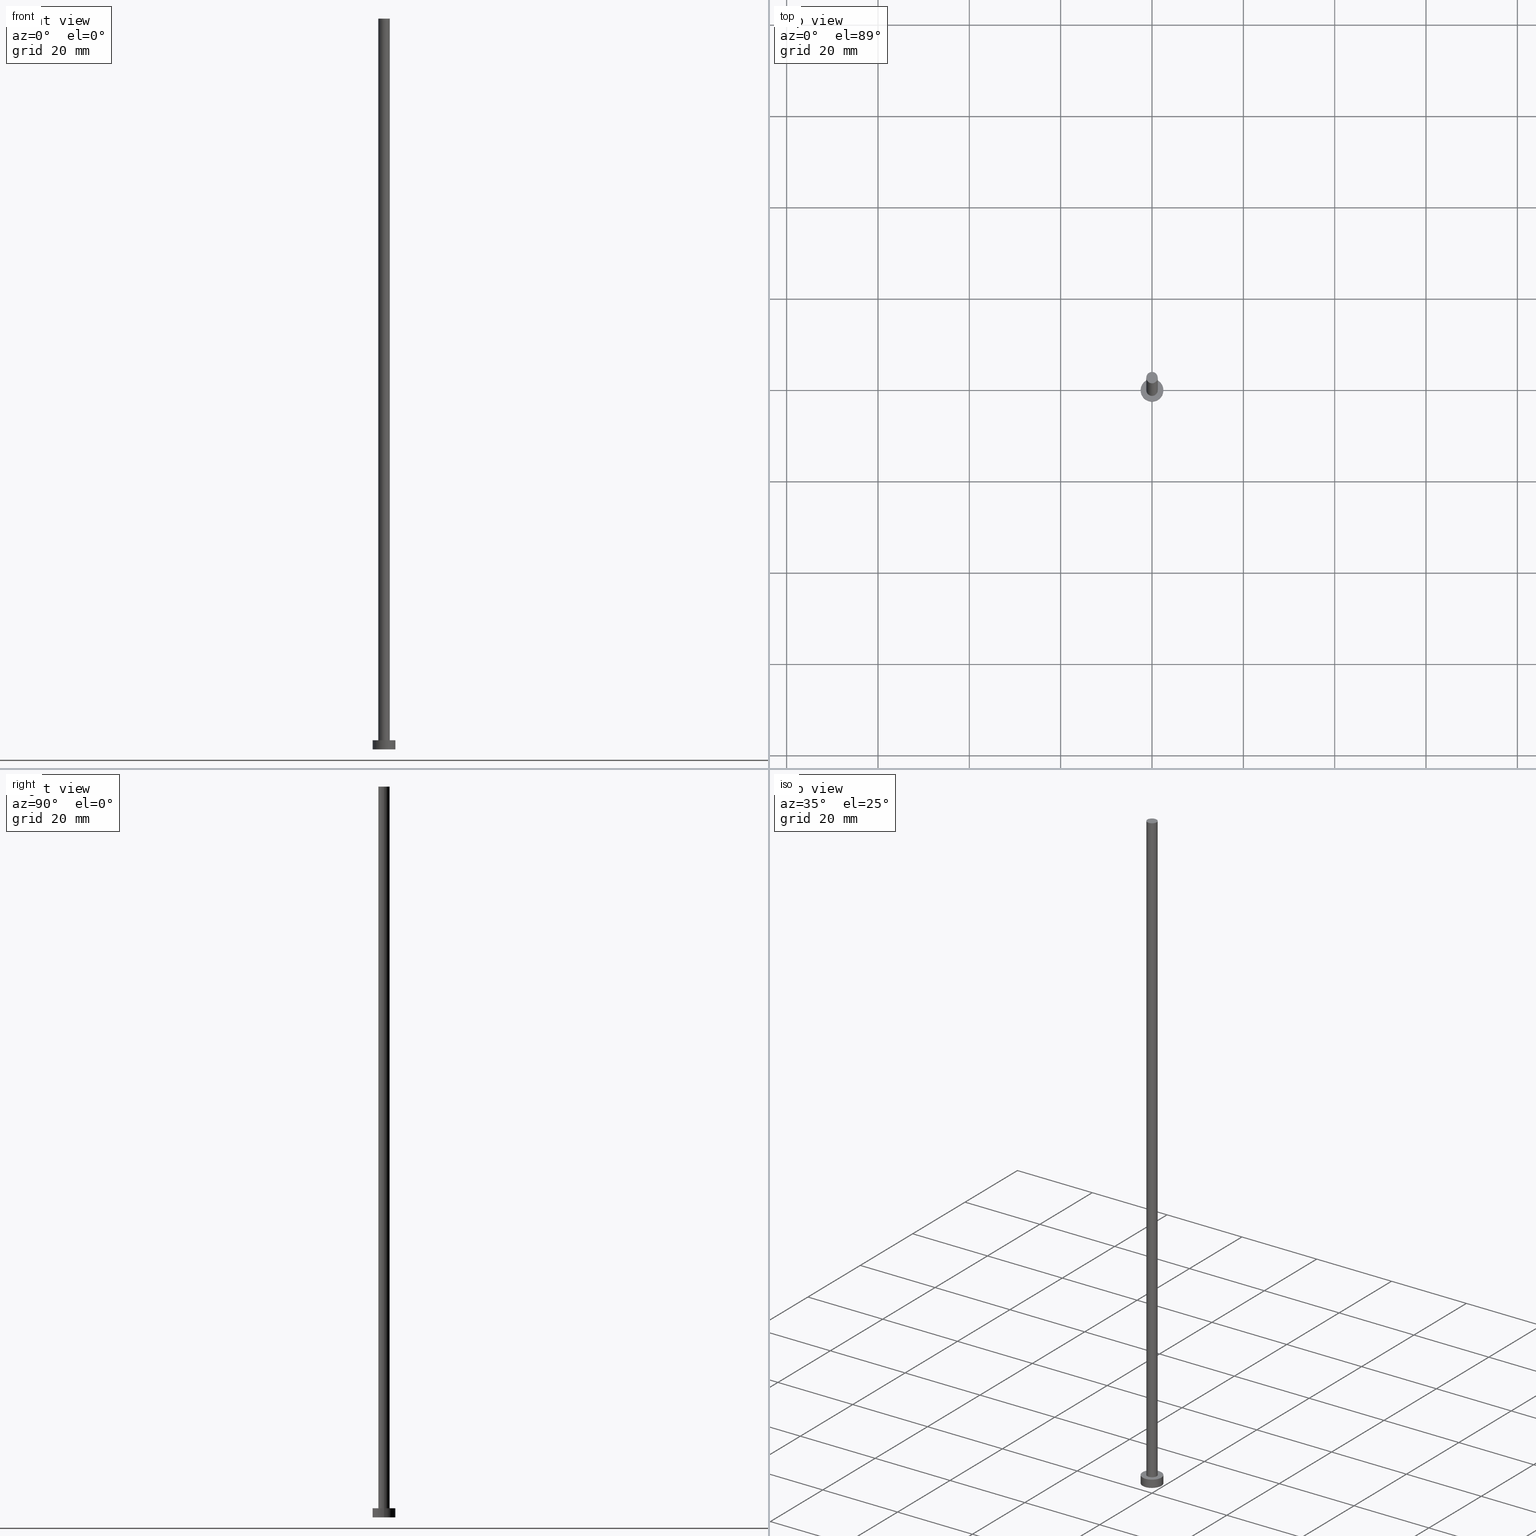
[diagram: canonical four-view strip — front | top / right | iso, engineering-drawing reading convention]
A machine part, canonical four-view strip (front | top / right | iso — engineering-drawing reading convention). The complete STEP part file that produces these views, byte-faithful:
ISO-10303-21;
HEADER;
FILE_DESCRIPTION (( 'STEP AP203' ),
    '1' );
FILE_NAME ('59c2.STEP',
    '2023-02-13T17:04:40',
    ( '' ),
    ( '' ),
    'SwSTEP 2.0',
    'SolidWorks 2019',
    '' );
FILE_SCHEMA (( 'CONFIG_CONTROL_DESIGN' ));
ENDSEC;

DATA;
#1 = CARTESIAN_POINT ( 'NONE',  ( 0.000000000000000000, 0.000000000000000000, 160.0000000000000000 ) ) ;
#2 = APPROVAL ( #150, 'NEUR�EN�' ) ;
#3 = VERTEX_POINT ( 'NONE', #157 ) ;
#4 = PERSON_AND_ORGANIZATION_ROLE ( 'design_supplier' ) ;
#5 = ORIENTED_EDGE ( 'NONE', *, *, #137, .T. ) ;
#6 = UNCERTAINTY_MEASURE_WITH_UNIT (LENGTH_MEASURE( 1.000000000000000082E-05 ), #68, 'distance_accuracy_value', 'NONE');
#7 = COORDINATED_UNIVERSAL_TIME_OFFSET ( 1, 0, .AHEAD. ) ;
#8 = EDGE_CURVE ( 'NONE', #170, #176, #45, .T. ) ;
#9 = EDGE_LOOP ( 'NONE', ( #16, #96 ) ) ;
#10 = PERSON_AND_ORGANIZATION ( #159, #158 ) ;
#11 = PRODUCT_DEFINITION_SHAPE ( 'NONE', 'NONE',  #129 ) ;
#12 = CARTESIAN_POINT ( 'NONE',  ( 0.000000000000000000, 0.000000000000000000, 0.000000000000000000 ) ) ;
#13 = APPROVAL_DATE_TIME ( #40, #2 ) ;
#14 = APPROVAL_DATE_TIME ( #34, #106 ) ;
#15 = PERSON_AND_ORGANIZATION_ROLE ( 'design_owner' ) ;
#16 = ORIENTED_EDGE ( 'NONE', *, *, #8, .T. ) ;
#17 = CARTESIAN_POINT ( 'NONE',  ( -2.500000000000000000, 0.000000000000000000, 2.000000000000000000 ) ) ;
#18 = ORIENTED_EDGE ( 'NONE', *, *, #8, .F. ) ;
#19 = CARTESIAN_POINT ( 'NONE',  ( 2.500000000000000000, 3.061616997868383141E-16, 2.000000000000000000 ) ) ;
#20 = DATE_AND_TIME ( #193, #122 ) ;
#21 = ORIENTED_EDGE ( 'NONE', *, *, #94, .F. ) ;
#22 = CARTESIAN_POINT ( 'NONE',  ( 0.000000000000000000, 0.000000000000000000, 2.000000000000000000 ) ) ;
#23 = AXIS2_PLACEMENT_3D ( 'NONE', #234, #212, #52 ) ;
#24 = CIRCLE ( 'NONE', #239, 2.500000000000000000 ) ;
#25 = CC_DESIGN_APPROVAL ( #2, ( #116 ) ) ;
#26 = DIRECTION ( 'NONE',  ( -0.000000000000000000, -0.000000000000000000, -1.000000000000000000 ) ) ;
#27 = PRODUCT_RELATED_PRODUCT_CATEGORY ( 'detail', '', ( #104 ) ) ;
#28 = CLOSED_SHELL ( 'NONE', ( #48, #211, #115, #151, #163, #126, #114 ) ) ;
#29 = APPROVAL_PERSON_ORGANIZATION ( #180, #2, #71 ) ;
#30 = DIRECTION ( 'NONE',  ( -0.000000000000000000, -0.000000000000000000, -1.000000000000000000 ) ) ;
#31 = LINE ( 'NONE', #148, #213 ) ;
#32 = VECTOR ( 'NONE', #173, 1000.000000000000000 ) ;
#33 = EDGE_CURVE ( 'NONE', #3, #41, #120, .T. ) ;
#34 = DATE_AND_TIME ( #187, #98 ) ;
#35 = DIRECTION ( 'NONE',  ( -1.000000000000000000, 0.000000000000000000, 0.000000000000000000 ) ) ;
#36 = AXIS2_PLACEMENT_3D ( 'NONE', #109, #155, #221 ) ;
#37 = VECTOR ( 'NONE', #83, 1000.000000000000000 ) ;
#38 = EDGE_CURVE ( 'NONE', #41, #232, #195, .T. ) ;
#39 = EDGE_LOOP ( 'NONE', ( #21, #18, #250, #240 ) ) ;
#40 = DATE_AND_TIME ( #90, #147 ) ;
#41 = VERTEX_POINT ( 'NONE', #55 ) ;
#42 = DIRECTION ( 'NONE',  ( 1.000000000000000000, 0.000000000000000000, -0.000000000000000000 ) ) ;
#43 = CALENDAR_DATE ( 2023, 13, 2 ) ;
#44 = DIRECTION ( 'NONE',  ( 1.000000000000000000, 0.000000000000000000, 0.000000000000000000 ) ) ;
#45 = CIRCLE ( 'NONE', #36, 2.500000000000000000 ) ;
#46 = FACE_OUTER_BOUND ( 'NONE', #9, .T. ) ;
#47 = CIRCLE ( 'NONE', #188, 1.250000000000000000 ) ;
#48 = ADVANCED_FACE ( 'NONE', ( #254 ), #178, .T. ) ;
#49 = ORIENTED_EDGE ( 'NONE', *, *, #236, .F. ) ;
#50 = FACE_OUTER_BOUND ( 'NONE', #39, .T. ) ;
#51 = DIRECTION ( 'NONE',  ( 0.000000000000000000, 0.000000000000000000, 1.000000000000000000 ) ) ;
#52 = DIRECTION ( 'NONE',  ( -1.000000000000000000, 0.000000000000000000, 0.000000000000000000 ) ) ;
#53 = VECTOR ( 'NONE', #103, 1000.000000000000000 ) ;
#54 = EDGE_CURVE ( 'NONE', #204, #65, #108, .T. ) ;
#55 = CARTESIAN_POINT ( 'NONE',  ( 1.250000000000000000, 1.530808498934191571E-16, 2.000000000000000000 ) ) ;
#56 = DIRECTION ( 'NONE',  ( 0.000000000000000000, 0.000000000000000000, 1.000000000000000000 ) ) ;
#57 = CARTESIAN_POINT ( 'NONE',  ( 1.250000000000000000, 1.530808498934191571E-16, 160.0000000000000000 ) ) ;
#58 = PERSON_AND_ORGANIZATION ( #159, #158 ) ;
#59 = CARTESIAN_POINT ( 'NONE',  ( -1.250000000000000000, 0.000000000000000000, 160.0000000000000000 ) ) ;
#60 = DIRECTION ( 'NONE',  ( 0.000000000000000000, 0.000000000000000000, 1.000000000000000000 ) ) ;
#61 = APPROVAL_ROLE ( '' ) ;
#62 = PLANE ( 'NONE',  #110 ) ;
#63 = ORIENTED_EDGE ( 'NONE', *, *, #149, .F. ) ;
#64 = AXIS2_PLACEMENT_3D ( 'NONE', #140, #223, #42 ) ;
#65 = VERTEX_POINT ( 'NONE', #81 ) ;
#66 = FACE_BOUND ( 'NONE', #245, .T. ) ;
#67 = DIRECTION ( 'NONE',  ( 0.000000000000000000, 0.000000000000000000, 1.000000000000000000 ) ) ;
#68 =( LENGTH_UNIT ( ) NAMED_UNIT ( * ) SI_UNIT ( .MILLI., .METRE. ) );
#69 = EDGE_CURVE ( 'NONE', #176, #170, #138, .T. ) ;
#70 = CIRCLE ( 'NONE', #139, 1.250000000000000000 ) ;
#71 = APPROVAL_ROLE ( '' ) ;
#72 = CC_DESIGN_PERSON_AND_ORGANIZATION_ASSIGNMENT ( #58, #181, ( #129 ) ) ;
#73 = AXIS2_PLACEMENT_3D ( 'NONE', #1, #30, #92 ) ;
#74 = FACE_OUTER_BOUND ( 'NONE', #84, .T. ) ;
#75 = DESIGN_CONTEXT ( 'detailed design', #76, 'design' ) ;
#76 = APPLICATION_CONTEXT ( 'configuration controlled 3d designs of mechanical parts and assemblies' ) ;
#77 = CC_DESIGN_PERSON_AND_ORGANIZATION_ASSIGNMENT ( #189, #80, ( #216 ) ) ;
#78 = EDGE_LOOP ( 'NONE', ( #125, #231 ) ) ;
#79 = DIRECTION ( 'NONE',  ( 0.000000000000000000, 0.000000000000000000, 1.000000000000000000 ) ) ;
#80 = PERSON_AND_ORGANIZATION_ROLE ( 'classification_officer' ) ;
#81 = CARTESIAN_POINT ( 'NONE',  ( -2.500000000000000000, 0.000000000000000000, 0.000000000000000000 ) ) ;
#82 = CARTESIAN_POINT ( 'NONE',  ( 0.000000000000000000, 0.000000000000000000, 160.0000000000000000 ) ) ;
#83 = DIRECTION ( 'NONE',  ( -0.000000000000000000, -0.000000000000000000, -1.000000000000000000 ) ) ;
#84 = EDGE_LOOP ( 'NONE', ( #235, #175, #238, #5 ) ) ;
#85 = CARTESIAN_POINT ( 'NONE',  ( 0.000000000000000000, 0.000000000000000000, 2.000000000000000000 ) ) ;
#86 = AXIS2_PLACEMENT_3D ( 'NONE', #85, #196, #91 ) ;
#87 = CIRCLE ( 'NONE', #224, 1.250000000000000000 ) ;
#88 = EDGE_CURVE ( 'NONE', #167, #3, #47, .T. ) ;
#89 = EDGE_LOOP ( 'NONE', ( #63, #247, #146, #199 ) ) ;
#90 = CALENDAR_DATE ( 2023, 13, 2 ) ;
#91 = DIRECTION ( 'NONE',  ( -1.000000000000000000, 0.000000000000000000, 0.000000000000000000 ) ) ;
#92 = DIRECTION ( 'NONE',  ( -1.000000000000000000, 0.000000000000000000, 0.000000000000000000 ) ) ;
#93 = CARTESIAN_POINT ( 'NONE',  ( 0.000000000000000000, 0.000000000000000000, 160.0000000000000000 ) ) ;
#94 = EDGE_CURVE ( 'NONE', #176, #204, #31, .T. ) ;
#95 = CARTESIAN_POINT ( 'NONE',  ( 0.000000000000000000, 0.000000000000000000, 160.0000000000000000 ) ) ;
#96 = ORIENTED_EDGE ( 'NONE', *, *, #69, .T. ) ;
#97 = SHAPE_DEFINITION_REPRESENTATION ( #11, #217 ) ;
#98 = LOCAL_TIME ( 18, 4, 40.00000000000000000, #118 ) ;
#99 = CC_DESIGN_APPROVAL ( #119, ( #129 ) ) ;
#100 = ORIENTED_EDGE ( 'NONE', *, *, #54, .T. ) ;
#101 = DIRECTION ( 'NONE',  ( 1.000000000000000000, 0.000000000000000000, 0.000000000000000000 ) ) ;
#102 = DATE_TIME_ROLE ( 'creation_date' ) ;
#103 = DIRECTION ( 'NONE',  ( -0.000000000000000000, -0.000000000000000000, -1.000000000000000000 ) ) ;
#104 = PRODUCT ( '59c2', '59c2', '', ( #207 ) ) ;
#105 = APPROVAL_DATE_TIME ( #20, #119 ) ;
#106 = APPROVAL ( #177, 'NEUR�EN�' ) ;
#107 = DIRECTION ( 'NONE',  ( 1.000000000000000000, 0.000000000000000000, -0.000000000000000000 ) ) ;
#108 = CIRCLE ( 'NONE', #143, 2.500000000000000000 ) ;
#109 = CARTESIAN_POINT ( 'NONE',  ( 0.000000000000000000, 0.000000000000000000, 2.000000000000000000 ) ) ;
#110 = AXIS2_PLACEMENT_3D ( 'NONE', #22, #130, #107 ) ;
#111 = ORIENTED_EDGE ( 'NONE', *, *, #94, .T. ) ;
#112 = ORIENTED_EDGE ( 'NONE', *, *, #69, .F. ) ;
#113 = MANIFOLD_SOLID_BREP ( 'P�idat vysunut�m3', #28 ) ;
#114 = ADVANCED_FACE ( 'NONE', ( #197 ), #168, .T. ) ;
#115 = ADVANCED_FACE ( 'NONE', ( #50 ), #136, .T. ) ;
#116 = PRODUCT_DEFINITION_FORMATION_WITH_SPECIFIED_SOURCE ( 'LIBOVOLN�', '', #104, .NOT_KNOWN. ) ;
#117 = APPLICATION_CONTEXT ( 'configuration controlled 3d designs of mechanical parts and assemblies' ) ;
#118 = COORDINATED_UNIVERSAL_TIME_OFFSET ( 1, 0, .AHEAD. ) ;
#119 = APPROVAL ( #144, 'NEUR�EN�' ) ;
#120 = LINE ( 'NONE', #57, #32 ) ;
#121 = LOCAL_TIME ( 18, 4, 40.00000000000000000, #7 ) ;
#122 = LOCAL_TIME ( 18, 4, 40.00000000000000000, #128 ) ;
#123 = DIRECTION ( 'NONE',  ( 1.000000000000000000, 0.000000000000000000, 0.000000000000000000 ) ) ;
#124 = SECURITY_CLASSIFICATION_LEVEL ( 'unclassified' ) ;
#125 = ORIENTED_EDGE ( 'NONE', *, *, #88, .T. ) ;
#126 = ADVANCED_FACE ( 'NONE', ( #74 ), #133, .T. ) ;
#127 = LINE ( 'NONE', #246, #37 ) ;
#128 = COORDINATED_UNIVERSAL_TIME_OFFSET ( 1, 0, .AHEAD. ) ;
#129 = PRODUCT_DEFINITION ( 'NEZN�M�', '', #116, #75 ) ;
#130 = DIRECTION ( 'NONE',  ( 0.000000000000000000, 0.000000000000000000, 1.000000000000000000 ) ) ;
#131 = EDGE_LOOP ( 'NONE', ( #112, #111, #100, #186 ) ) ;
#132 = DIRECTION ( 'NONE',  ( 0.000000000000000000, 0.000000000000000000, 1.000000000000000000 ) ) ;
#133 = CYLINDRICAL_SURFACE ( 'NONE', #73, 1.250000000000000000 ) ;
#134 = CC_DESIGN_PERSON_AND_ORGANIZATION_ASSIGNMENT ( #10, #4, ( #116 ) ) ;
#135 = EDGE_LOOP ( 'NONE', ( #49, #183 ) ) ;
#136 = CYLINDRICAL_SURFACE ( 'NONE', #23, 2.500000000000000000 ) ;
#137 = EDGE_CURVE ( 'NONE', #232, #41, #70, .T. ) ;
#138 = CIRCLE ( 'NONE', #229, 2.500000000000000000 ) ;
#139 = AXIS2_PLACEMENT_3D ( 'NONE', #165, #153, #233 ) ;
#140 = CARTESIAN_POINT ( 'NONE',  ( 0.000000000000000000, 0.000000000000000000, 0.000000000000000000 ) ) ;
#141 = DIRECTION ( 'NONE',  ( 1.000000000000000000, 0.000000000000000000, 0.000000000000000000 ) ) ;
#142 = PLANE ( 'NONE',  #64 ) ;
#143 = AXIS2_PLACEMENT_3D ( 'NONE', #12, #79, #101 ) ;
#144 = APPROVAL_STATUS ( 'not_yet_approved' ) ;
#145 = DIRECTION ( 'NONE',  ( 0.000000000000000000, 0.000000000000000000, 1.000000000000000000 ) ) ;
#146 = ORIENTED_EDGE ( 'NONE', *, *, #38, .T. ) ;
#147 = LOCAL_TIME ( 18, 4, 40.00000000000000000, #210 ) ;
#148 = CARTESIAN_POINT ( 'NONE',  ( 2.500000000000000000, 3.061616997868383141E-16, 2.000000000000000000 ) ) ;
#149 = EDGE_CURVE ( 'NONE', #3, #167, #87, .T. ) ;
#150 = APPROVAL_STATUS ( 'not_yet_approved' ) ;
#151 = ADVANCED_FACE ( 'NONE', ( #66, #46 ), #62, .T. ) ;
#152 = APPROVAL_PERSON_ORGANIZATION ( #242, #106, #191 ) ;
#153 = DIRECTION ( 'NONE',  ( 0.000000000000000000, 0.000000000000000000, 1.000000000000000000 ) ) ;
#154 = APPLICATION_PROTOCOL_DEFINITION ( 'international standard', 'config_control_design', 1994, #117 ) ;
#155 = DIRECTION ( 'NONE',  ( 0.000000000000000000, 0.000000000000000000, 1.000000000000000000 ) ) ;
#156 = LINE ( 'NONE', #17, #53 ) ;
#157 = CARTESIAN_POINT ( 'NONE',  ( 1.250000000000000000, 1.530808498934191571E-16, 160.0000000000000000 ) ) ;
#158 = ORGANIZATION ( 'NEUR�EN�', 'NEUR�EN�', '' ) ;
#159 = PERSON ( 'NEUR�EN�', 'NEUR�EN�', 'NEUR�EN�', ('NEUR�EN�'), ('NEUR�EN�'), ('NEUR�EN�') ) ;
#160 = CARTESIAN_POINT ( 'NONE',  ( 2.500000000000000000, 3.061616997868383141E-16, 0.000000000000000000 ) ) ;
#161 = EDGE_CURVE ( 'NONE', #170, #65, #156, .T. ) ;
#162 = CARTESIAN_POINT ( 'NONE',  ( -1.250000000000000000, 0.000000000000000000, 2.000000000000000000 ) ) ;
#163 = ADVANCED_FACE ( 'NONE', ( #248 ), #142, .F. ) ;
#164 =( NAMED_UNIT ( * ) PLANE_ANGLE_UNIT ( ) SI_UNIT ( $, .RADIAN. ) );
#165 = CARTESIAN_POINT ( 'NONE',  ( 0.000000000000000000, 0.000000000000000000, 2.000000000000000000 ) ) ;
#166 = DIRECTION ( 'NONE',  ( 1.000000000000000000, 0.000000000000000000, -0.000000000000000000 ) ) ;
#167 = VERTEX_POINT ( 'NONE', #59 ) ;
#168 = PLANE ( 'NONE',  #251 ) ;
#169 = CC_DESIGN_SECURITY_CLASSIFICATION ( #216, ( #116 ) ) ;
#170 = VERTEX_POINT ( 'NONE', #190 ) ;
#171 = CC_DESIGN_PERSON_AND_ORGANIZATION_ASSIGNMENT ( #244, #228, ( #116 ) ) ;
#172 = DIRECTION ( 'NONE',  ( 0.000000000000000000, 0.000000000000000000, 1.000000000000000000 ) ) ;
#173 = DIRECTION ( 'NONE',  ( -0.000000000000000000, -0.000000000000000000, -1.000000000000000000 ) ) ;
#174 = PERSON_AND_ORGANIZATION ( #159, #158 ) ;
#175 = ORIENTED_EDGE ( 'NONE', *, *, #88, .F. ) ;
#176 = VERTEX_POINT ( 'NONE', #19 ) ;
#177 = APPROVAL_STATUS ( 'not_yet_approved' ) ;
#178 = CYLINDRICAL_SURFACE ( 'NONE', #179, 1.250000000000000000 ) ;
#179 = AXIS2_PLACEMENT_3D ( 'NONE', #243, #203, #35 ) ;
#180 = PERSON_AND_ORGANIZATION ( #159, #158 ) ;
#181 = PERSON_AND_ORGANIZATION_ROLE ( 'creator' ) ;
#182 = ORIENTED_EDGE ( 'NONE', *, *, #38, .F. ) ;
#183 = ORIENTED_EDGE ( 'NONE', *, *, #54, .F. ) ;
#184 = CC_DESIGN_DATE_AND_TIME_ASSIGNMENT ( #222, #219, ( #216 ) ) ;
#185 = CARTESIAN_POINT ( 'NONE',  ( 0.000000000000000000, 0.000000000000000000, 0.000000000000000000 ) ) ;
#186 = ORIENTED_EDGE ( 'NONE', *, *, #161, .F. ) ;
#187 = CALENDAR_DATE ( 2023, 13, 2 ) ;
#188 = AXIS2_PLACEMENT_3D ( 'NONE', #82, #145, #209 ) ;
#189 = PERSON_AND_ORGANIZATION ( #159, #158 ) ;
#190 = CARTESIAN_POINT ( 'NONE',  ( -2.500000000000000000, 0.000000000000000000, 2.000000000000000000 ) ) ;
#191 = APPROVAL_ROLE ( '' ) ;
#192 = APPLICATION_PROTOCOL_DEFINITION ( 'international standard', 'config_control_design', 1994, #76 ) ;
#193 = CALENDAR_DATE ( 2023, 13, 2 ) ;
#194 = EDGE_CURVE ( 'NONE', #167, #232, #127, .T. ) ;
#195 = CIRCLE ( 'NONE', #206, 1.250000000000000000 ) ;
#196 = DIRECTION ( 'NONE',  ( -0.000000000000000000, -0.000000000000000000, -1.000000000000000000 ) ) ;
#197 = FACE_OUTER_BOUND ( 'NONE', #78, .T. ) ;
#198 = DIRECTION ( 'NONE',  ( 1.000000000000000000, 0.000000000000000000, 0.000000000000000000 ) ) ;
#199 = ORIENTED_EDGE ( 'NONE', *, *, #194, .F. ) ;
#200 = APPROVAL_PERSON_ORGANIZATION ( #174, #119, #61 ) ;
#201 = CC_DESIGN_DATE_AND_TIME_ASSIGNMENT ( #208, #102, ( #129 ) ) ;
#202 = CARTESIAN_POINT ( 'NONE',  ( 0.000000000000000000, 0.000000000000000000, 0.000000000000000000 ) ) ;
#203 = DIRECTION ( 'NONE',  ( -0.000000000000000000, -0.000000000000000000, -1.000000000000000000 ) ) ;
#204 = VERTEX_POINT ( 'NONE', #160 ) ;
#205 = CYLINDRICAL_SURFACE ( 'NONE', #86, 2.500000000000000000 ) ;
#206 = AXIS2_PLACEMENT_3D ( 'NONE', #218, #67, #123 ) ;
#207 = MECHANICAL_CONTEXT ( 'NONE', #117, 'mechanical' ) ;
#208 = DATE_AND_TIME ( #43, #237 ) ;
#209 = DIRECTION ( 'NONE',  ( 1.000000000000000000, 0.000000000000000000, 0.000000000000000000 ) ) ;
#210 = COORDINATED_UNIVERSAL_TIME_OFFSET ( 1, 0, .AHEAD. ) ;
#211 = ADVANCED_FACE ( 'NONE', ( #227 ), #205, .T. ) ;
#212 = DIRECTION ( 'NONE',  ( -0.000000000000000000, -0.000000000000000000, -1.000000000000000000 ) ) ;
#213 = VECTOR ( 'NONE', #26, 1000.000000000000000 ) ;
#214 =( NAMED_UNIT ( * ) SI_UNIT ( $, .STERADIAN. ) SOLID_ANGLE_UNIT ( ) );
#215 =( GEOMETRIC_REPRESENTATION_CONTEXT ( 3 ) GLOBAL_UNCERTAINTY_ASSIGNED_CONTEXT ( ( #6 ) ) GLOBAL_UNIT_ASSIGNED_CONTEXT ( ( #68, #164, #214 ) ) REPRESENTATION_CONTEXT ( 'NONE', 'WORKASPACE' ) );
#216 = SECURITY_CLASSIFICATION ( '', '', #124 ) ;
#217 = ADVANCED_BREP_SHAPE_REPRESENTATION ( '59c2', ( #113, #253 ), #215 ) ;
#218 = CARTESIAN_POINT ( 'NONE',  ( 0.000000000000000000, 0.000000000000000000, 2.000000000000000000 ) ) ;
#219 = DATE_TIME_ROLE ( 'classification_date' ) ;
#220 = CC_DESIGN_PERSON_AND_ORGANIZATION_ASSIGNMENT ( #230, #15, ( #104 ) ) ;
#221 = DIRECTION ( 'NONE',  ( 1.000000000000000000, 0.000000000000000000, 0.000000000000000000 ) ) ;
#222 = DATE_AND_TIME ( #241, #121 ) ;
#223 = DIRECTION ( 'NONE',  ( 0.000000000000000000, 0.000000000000000000, 1.000000000000000000 ) ) ;
#224 = AXIS2_PLACEMENT_3D ( 'NONE', #95, #172, #226 ) ;
#225 = CARTESIAN_POINT ( 'NONE',  ( 0.000000000000000000, 0.000000000000000000, 2.000000000000000000 ) ) ;
#226 = DIRECTION ( 'NONE',  ( 1.000000000000000000, 0.000000000000000000, 0.000000000000000000 ) ) ;
#227 = FACE_OUTER_BOUND ( 'NONE', #131, .T. ) ;
#228 = PERSON_AND_ORGANIZATION_ROLE ( 'creator' ) ;
#229 = AXIS2_PLACEMENT_3D ( 'NONE', #225, #60, #141 ) ;
#230 = PERSON_AND_ORGANIZATION ( #159, #158 ) ;
#231 = ORIENTED_EDGE ( 'NONE', *, *, #149, .T. ) ;
#232 = VERTEX_POINT ( 'NONE', #162 ) ;
#233 = DIRECTION ( 'NONE',  ( 1.000000000000000000, 0.000000000000000000, 0.000000000000000000 ) ) ;
#234 = CARTESIAN_POINT ( 'NONE',  ( 0.000000000000000000, 0.000000000000000000, 2.000000000000000000 ) ) ;
#235 = ORIENTED_EDGE ( 'NONE', *, *, #33, .F. ) ;
#236 = EDGE_CURVE ( 'NONE', #65, #204, #24, .T. ) ;
#237 = LOCAL_TIME ( 18, 4, 40.00000000000000000, #249 ) ;
#238 = ORIENTED_EDGE ( 'NONE', *, *, #194, .T. ) ;
#239 = AXIS2_PLACEMENT_3D ( 'NONE', #185, #132, #198 ) ;
#240 = ORIENTED_EDGE ( 'NONE', *, *, #236, .T. ) ;
#241 = CALENDAR_DATE ( 2023, 13, 2 ) ;
#242 = PERSON_AND_ORGANIZATION ( #159, #158 ) ;
#243 = CARTESIAN_POINT ( 'NONE',  ( 0.000000000000000000, 0.000000000000000000, 160.0000000000000000 ) ) ;
#244 = PERSON_AND_ORGANIZATION ( #159, #158 ) ;
#245 = EDGE_LOOP ( 'NONE', ( #255, #182 ) ) ;
#246 = CARTESIAN_POINT ( 'NONE',  ( -1.250000000000000000, 0.000000000000000000, 160.0000000000000000 ) ) ;
#247 = ORIENTED_EDGE ( 'NONE', *, *, #33, .T. ) ;
#248 = FACE_OUTER_BOUND ( 'NONE', #135, .T. ) ;
#249 = COORDINATED_UNIVERSAL_TIME_OFFSET ( 1, 0, .AHEAD. ) ;
#250 = ORIENTED_EDGE ( 'NONE', *, *, #161, .T. ) ;
#251 = AXIS2_PLACEMENT_3D ( 'NONE', #93, #51, #166 ) ;
#252 = CC_DESIGN_APPROVAL ( #106, ( #216 ) ) ;
#253 = AXIS2_PLACEMENT_3D ( 'NONE', #202, #56, #44 ) ;
#254 = FACE_OUTER_BOUND ( 'NONE', #89, .T. ) ;
#255 = ORIENTED_EDGE ( 'NONE', *, *, #137, .F. ) ;
ENDSEC;
END-ISO-10303-21;
